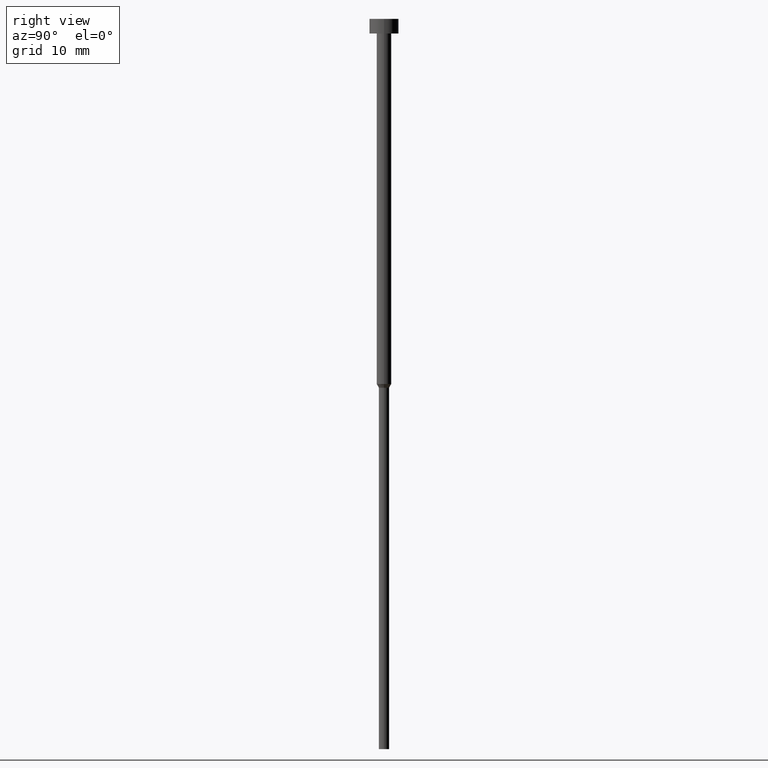
[diagram: clean part render]
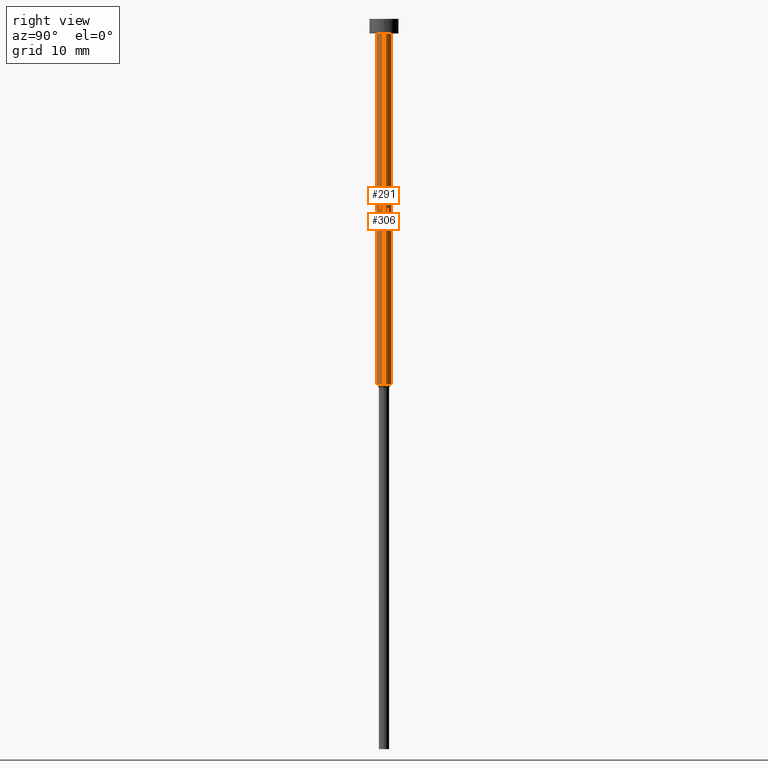
[diagram: same view with one multi-face feature highlighted, each face labeled with its STEP entity id]
A machine part, right view. The highlighted faces form ONE feature: a constant-radius fillet chain: 2 tangent blend faces with common blend radius 1 mm. The faces share edges in the B-rep.
Their STEP definitions:
[1] entity #306 (Cylinder):
#11 = CARTESIAN_POINT ( 'NONE',  ( -1.000000000000003109, 1.224646799147356905E-16, -50.00000000000000000 ) ) ;
#24 = CARTESIAN_POINT ( 'NONE',  ( 0.000000000000000000, 0.000000000000000000, 0.000000000000000000 ) ) ;
#27 = LINE ( 'NONE', #103, #234 ) ;
#31 = VERTEX_POINT ( 'NONE', #255 ) ;
#33 = VERTEX_POINT ( 'NONE', #11 ) ;
#54 = FACE_OUTER_BOUND ( 'NONE', #199, .T. ) ;
#59 = CARTESIAN_POINT ( 'NONE',  ( 0.000000000000000000, 0.000000000000000000, -50.00000000000000000 ) ) ;
#78 = AXIS2_PLACEMENT_3D ( 'NONE', #24, #244, #302 ) ;
#84 = CARTESIAN_POINT ( 'NONE',  ( -1.000000000000003553, 1.224646799147357398E-16, -2.000000000000000444 ) ) ;
#101 = DIRECTION ( 'NONE',  ( -0.000000000000000000, -0.000000000000000000, 1.000000000000000000 ) ) ;
#103 = CARTESIAN_POINT ( 'NONE',  ( -1.000000000000003331, 1.224646799147357151E-16, 0.000000000000000000 ) ) ;
#108 = LINE ( 'NONE', #215, #124 ) ;
#120 = CIRCLE ( 'NONE', #167, 1.000000000000003553 ) ;
#124 = VECTOR ( 'NONE', #213, 1000.000000000000000 ) ;
#133 = DIRECTION ( 'NONE',  ( -0.000000000000000000, -0.000000000000000000, 1.000000000000000000 ) ) ;
#161 = CYLINDRICAL_SURFACE ( 'NONE', #78, 1.000000000000003331 ) ;
#167 = AXIS2_PLACEMENT_3D ( 'NONE', #236, #101, #209 ) ;
#169 = ORIENTED_EDGE ( 'NONE', *, *, #315, .T. ) ;
#173 = EDGE_CURVE ( 'NONE', #326, #294, #120, .T. ) ;
#199 = EDGE_LOOP ( 'NONE', ( #169, #214, #212, #254 ) ) ;
#209 = DIRECTION ( 'NONE',  ( 1.000000000000000000, 0.000000000000000000, 0.000000000000000000 ) ) ;
#212 = ORIENTED_EDGE ( 'NONE', *, *, #173, .F. ) ;
#213 = DIRECTION ( 'NONE',  ( -0.000000000000000000, -0.000000000000000000, 1.000000000000000000 ) ) ;
#214 = ORIENTED_EDGE ( 'NONE', *, *, #216, .T. ) ;
#215 = CARTESIAN_POINT ( 'NONE',  ( 1.000000000000003331, 0.000000000000000000, 0.000000000000000000 ) ) ;
#216 = EDGE_CURVE ( 'NONE', #33, #294, #27, .T. ) ;
#228 = CIRCLE ( 'NONE', #279, 1.000000000000003109 ) ;
#234 = VECTOR ( 'NONE', #293, 1000.000000000000000 ) ;
#236 = CARTESIAN_POINT ( 'NONE',  ( 0.000000000000000000, 0.000000000000000000, -2.000000000000000444 ) ) ;
#241 = DIRECTION ( 'NONE',  ( 1.000000000000000000, 0.000000000000000000, 0.000000000000000000 ) ) ;
#244 = DIRECTION ( 'NONE',  ( -0.000000000000000000, -0.000000000000000000, 1.000000000000000000 ) ) ;
#254 = ORIENTED_EDGE ( 'NONE', *, *, #264, .F. ) ;
#255 = CARTESIAN_POINT ( 'NONE',  ( 1.000000000000003109, 0.000000000000000000, -50.00000000000000000 ) ) ;
#264 = EDGE_CURVE ( 'NONE', #31, #326, #108, .T. ) ;
#279 = AXIS2_PLACEMENT_3D ( 'NONE', #59, #133, #241 ) ;
#293 = DIRECTION ( 'NONE',  ( -0.000000000000000000, -0.000000000000000000, 1.000000000000000000 ) ) ;
#294 = VERTEX_POINT ( 'NONE', #84 ) ;
#302 = DIRECTION ( 'NONE',  ( 1.000000000000000000, 0.000000000000000000, 0.000000000000000000 ) ) ;
#306 = ADVANCED_FACE ( 'NONE', ( #54 ), #161, .T. ) ;
#315 = EDGE_CURVE ( 'NONE', #31, #33, #228, .T. ) ;
#326 = VERTEX_POINT ( 'NONE', #353 ) ;
#353 = CARTESIAN_POINT ( 'NONE',  ( 1.000000000000003553, 0.000000000000000000, -2.000000000000000444 ) ) ;
[2] entity #291 (Cylinder):
#5 = CYLINDRICAL_SURFACE ( 'NONE', #93, 1.000000000000003331 ) ;
#11 = CARTESIAN_POINT ( 'NONE',  ( -1.000000000000003109, 1.224646799147356905E-16, -50.00000000000000000 ) ) ;
#16 = AXIS2_PLACEMENT_3D ( 'NONE', #233, #153, #342 ) ;
#27 = LINE ( 'NONE', #103, #234 ) ;
#31 = VERTEX_POINT ( 'NONE', #255 ) ;
#32 = DIRECTION ( 'NONE',  ( -0.000000000000000000, -0.000000000000000000, 1.000000000000000000 ) ) ;
#33 = VERTEX_POINT ( 'NONE', #11 ) ;
#36 = ORIENTED_EDGE ( 'NONE', *, *, #92, .T. ) ;
#84 = CARTESIAN_POINT ( 'NONE',  ( -1.000000000000003553, 1.224646799147357398E-16, -2.000000000000000444 ) ) ;
#89 = CIRCLE ( 'NONE', #16, 1.000000000000003109 ) ;
#92 = EDGE_CURVE ( 'NONE', #33, #31, #89, .T. ) ;
#93 = AXIS2_PLACEMENT_3D ( 'NONE', #189, #277, #303 ) ;
#103 = CARTESIAN_POINT ( 'NONE',  ( -1.000000000000003331, 1.224646799147357151E-16, 0.000000000000000000 ) ) ;
#108 = LINE ( 'NONE', #215, #124 ) ;
#124 = VECTOR ( 'NONE', #213, 1000.000000000000000 ) ;
#136 = FACE_OUTER_BOUND ( 'NONE', #143, .T. ) ;
#141 = ORIENTED_EDGE ( 'NONE', *, *, #264, .T. ) ;
#143 = EDGE_LOOP ( 'NONE', ( #248, #36, #141, #172 ) ) ;
#153 = DIRECTION ( 'NONE',  ( -0.000000000000000000, -0.000000000000000000, 1.000000000000000000 ) ) ;
#172 = ORIENTED_EDGE ( 'NONE', *, *, #203, .F. ) ;
#189 = CARTESIAN_POINT ( 'NONE',  ( 0.000000000000000000, 0.000000000000000000, 0.000000000000000000 ) ) ;
#194 = CIRCLE ( 'NONE', #341, 1.000000000000003553 ) ;
#203 = EDGE_CURVE ( 'NONE', #294, #326, #194, .T. ) ;
#213 = DIRECTION ( 'NONE',  ( -0.000000000000000000, -0.000000000000000000, 1.000000000000000000 ) ) ;
#215 = CARTESIAN_POINT ( 'NONE',  ( 1.000000000000003331, 0.000000000000000000, 0.000000000000000000 ) ) ;
#216 = EDGE_CURVE ( 'NONE', #33, #294, #27, .T. ) ;
#233 = CARTESIAN_POINT ( 'NONE',  ( 0.000000000000000000, 0.000000000000000000, -50.00000000000000000 ) ) ;
#234 = VECTOR ( 'NONE', #293, 1000.000000000000000 ) ;
#247 = DIRECTION ( 'NONE',  ( 1.000000000000000000, 0.000000000000000000, 0.000000000000000000 ) ) ;
#248 = ORIENTED_EDGE ( 'NONE', *, *, #216, .F. ) ;
#255 = CARTESIAN_POINT ( 'NONE',  ( 1.000000000000003109, 0.000000000000000000, -50.00000000000000000 ) ) ;
#264 = EDGE_CURVE ( 'NONE', #31, #326, #108, .T. ) ;
#277 = DIRECTION ( 'NONE',  ( -0.000000000000000000, -0.000000000000000000, 1.000000000000000000 ) ) ;
#291 = ADVANCED_FACE ( 'NONE', ( #136 ), #5, .T. ) ;
#293 = DIRECTION ( 'NONE',  ( -0.000000000000000000, -0.000000000000000000, 1.000000000000000000 ) ) ;
#294 = VERTEX_POINT ( 'NONE', #84 ) ;
#303 = DIRECTION ( 'NONE',  ( 1.000000000000000000, 0.000000000000000000, 0.000000000000000000 ) ) ;
#326 = VERTEX_POINT ( 'NONE', #353 ) ;
#341 = AXIS2_PLACEMENT_3D ( 'NONE', #352, #32, #247 ) ;
#342 = DIRECTION ( 'NONE',  ( 1.000000000000000000, 0.000000000000000000, 0.000000000000000000 ) ) ;
#352 = CARTESIAN_POINT ( 'NONE',  ( 0.000000000000000000, 0.000000000000000000, -2.000000000000000444 ) ) ;
#353 = CARTESIAN_POINT ( 'NONE',  ( 1.000000000000003553, 0.000000000000000000, -2.000000000000000444 ) ) ;